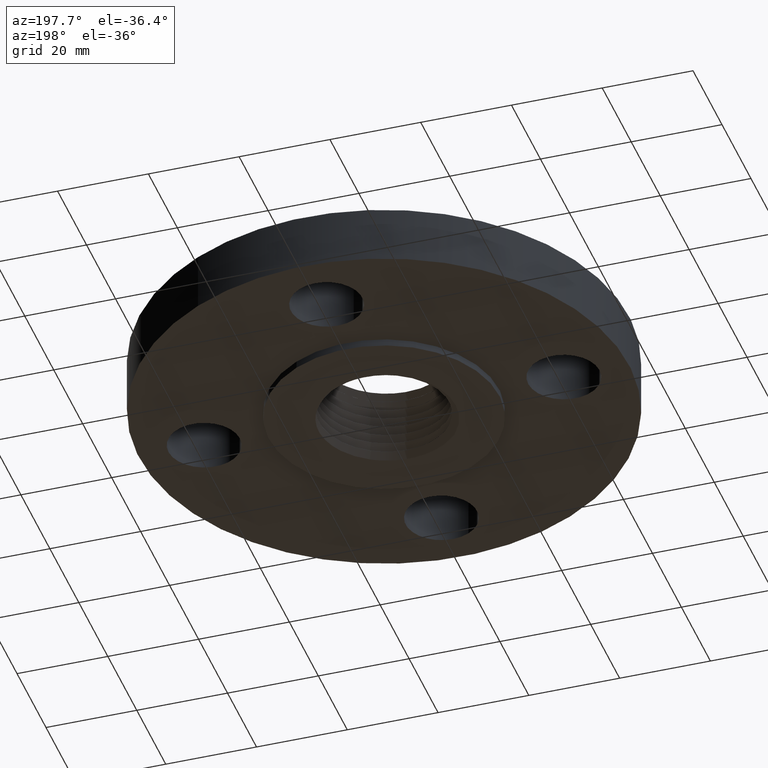
[diagram: clean part render]
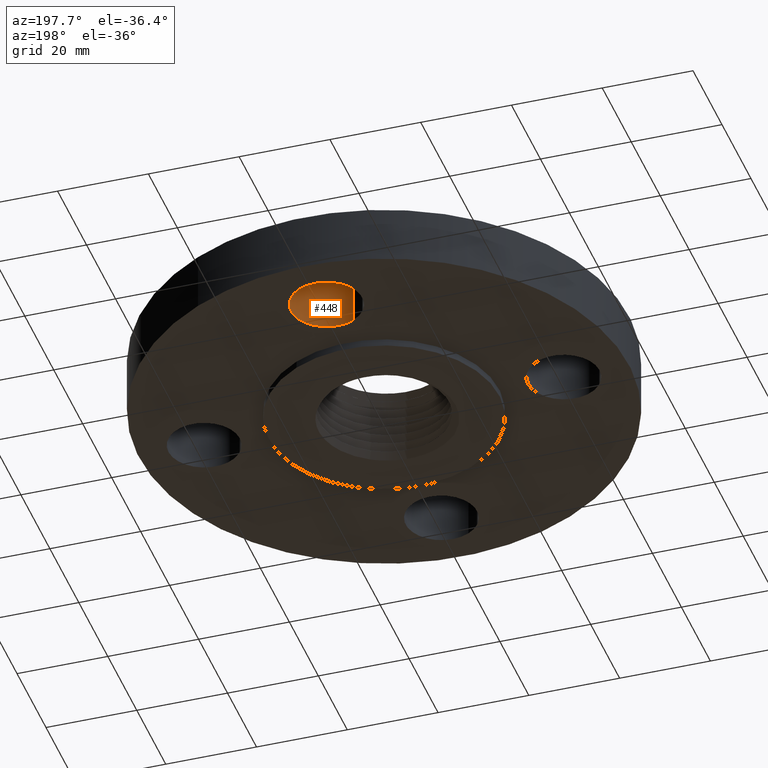
[diagram: same view with one face highlighted and labeled with its STEP entity id]
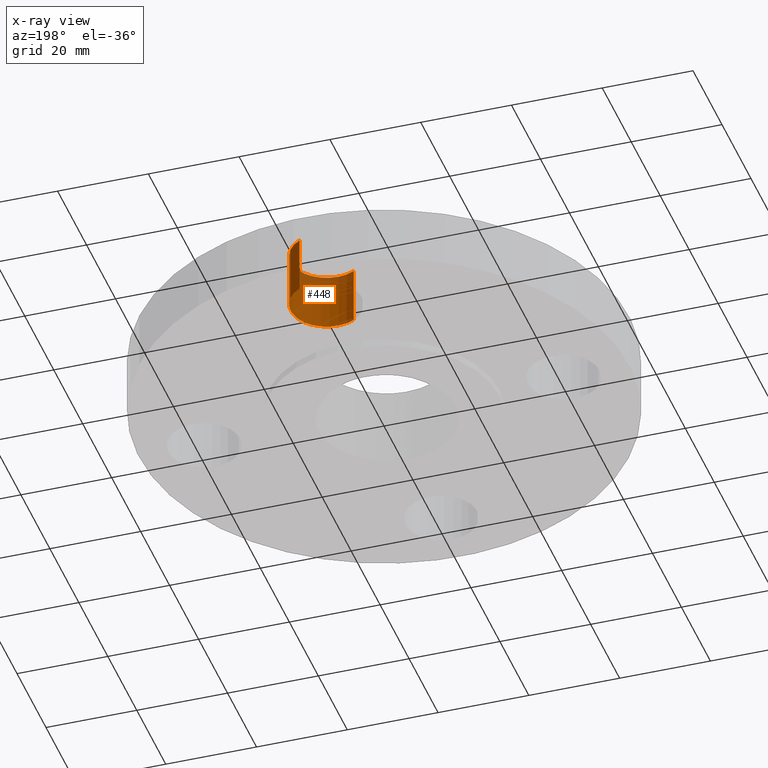
[diagram: x-ray of the same camera — body ghosted, the highlighted face saturated]
A machine part, auxiliary view. The second image highlights one B-rep face of the part: STEP entity #448.
The next image is the same camera in x-ray: the body ghosted, the highlighted face saturated — about 11% of this face is hidden behind the body in this view.
In plain terms, the highlighted cylindrical surface (partial cylindrical patch) has radius 7.874 mm, axis along (0, 0, -1).
Its self-contained STEP definition (entity closure, byte-faithful):
#412=AXIS2_PLACEMENT_3D('Cylinder Axis2P3D',#409,#410,#411) ;
#425=AXIS2_PLACEMENT_3D('Circle Axis2P3D',#423,#424,$) ;
#439=AXIS2_PLACEMENT_3D('Circle Axis2P3D',#437,#438,$) ;
#409=CARTESIAN_POINT('Axis2P3D Location',(-2.86567351002E-016,1.56000000001,0.496062992128)) ;
#414=CARTESIAN_POINT('Line Origine',(0.148621916968,1.83205059419,0.250000000001)) ;
#418=CARTESIAN_POINT('Vertex',(0.148621916968,1.83205059419,0.)) ;
#420=CARTESIAN_POINT('Vertex',(0.148621916968,1.83205059419,0.500000000002)) ;
#423=CARTESIAN_POINT('Axis2P3D Location',(-2.86567351002E-016,1.56000000001,0.)) ;
#427=CARTESIAN_POINT('Vertex',(-0.148621916968,1.28794940582,0.)) ;
#430=CARTESIAN_POINT('Line Origine',(-0.148621916968,1.28794940582,0.250000000001)) ;
#434=CARTESIAN_POINT('Vertex',(-0.148621916968,1.28794940582,0.500000000002)) ;
#437=CARTESIAN_POINT('Axis2P3D Location',(-2.86567351002E-016,1.56000000001,0.500000000002)) ;
#410=DIRECTION('Axis2P3D Direction',(0.,0.,-0.0393700787402)) ;
#411=DIRECTION('Axis2P3D XDirection',(-0.0188750212049,-0.0345504945626,-0.)) ;
#415=DIRECTION('Vector Direction',(0.,0.,-0.0393700787402)) ;
#424=DIRECTION('Axis2P3D Direction',(0.,0.,-0.0393700787402)) ;
#431=DIRECTION('Vector Direction',(0.,0.,-0.0393700787402)) ;
#438=DIRECTION('Axis2P3D Direction',(0.,0.,-0.0393700787402)) ;
#416=VECTOR('Line Direction',#415,0.0393700787402) ;
#432=VECTOR('Line Direction',#431,0.0393700787402) ;
#443=ORIENTED_EDGE('',*,*,#422,.F.) ;
#444=ORIENTED_EDGE('',*,*,#429,.T.) ;
#445=ORIENTED_EDGE('',*,*,#436,.T.) ;
#446=ORIENTED_EDGE('',*,*,#441,.F.) ;
#448=ADVANCED_FACE('PartBody',(#447),#413,.F.) ;
#426=CIRCLE('generated circle',#425,0.310000000001) ;
#440=CIRCLE('generated circle',#439,0.310000000001) ;
#413=CYLINDRICAL_SURFACE('generated cylinder',#412,0.310000000001) ;
#422=EDGE_CURVE('',#419,#421,#417,.F.) ;
#429=EDGE_CURVE('',#419,#428,#426,.T.) ;
#436=EDGE_CURVE('',#428,#435,#433,.F.) ;
#441=EDGE_CURVE('',#421,#435,#440,.T.) ;
#442=EDGE_LOOP('',(#443,#444,#445,#446)) ;
#447=FACE_OUTER_BOUND('',#442,.T.) ;
#417=LINE('Line',#414,#416) ;
#433=LINE('Line',#430,#432) ;
#419=VERTEX_POINT('',#418) ;
#421=VERTEX_POINT('',#420) ;
#428=VERTEX_POINT('',#427) ;
#435=VERTEX_POINT('',#434) ;